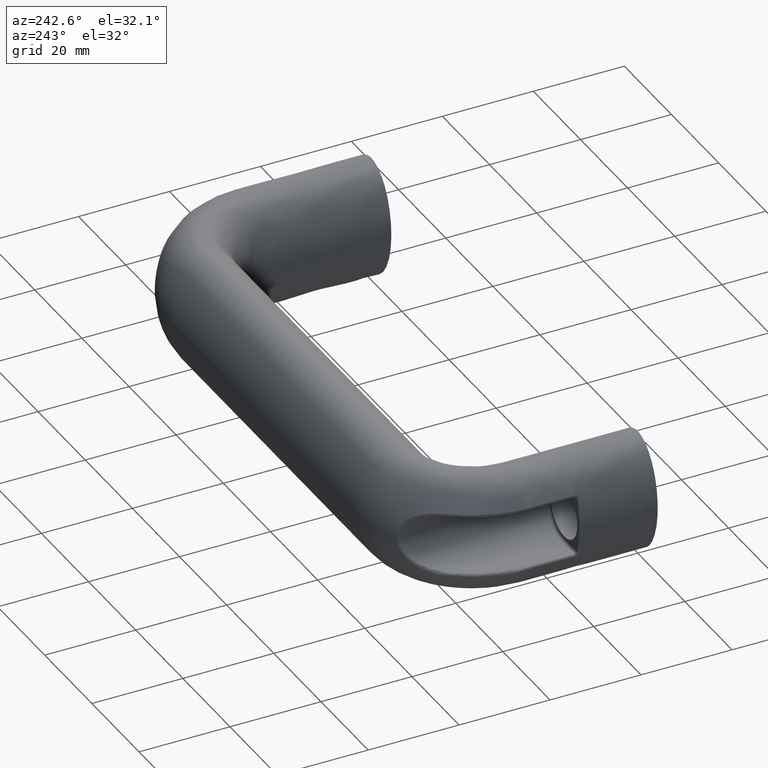
[diagram: clean part render]
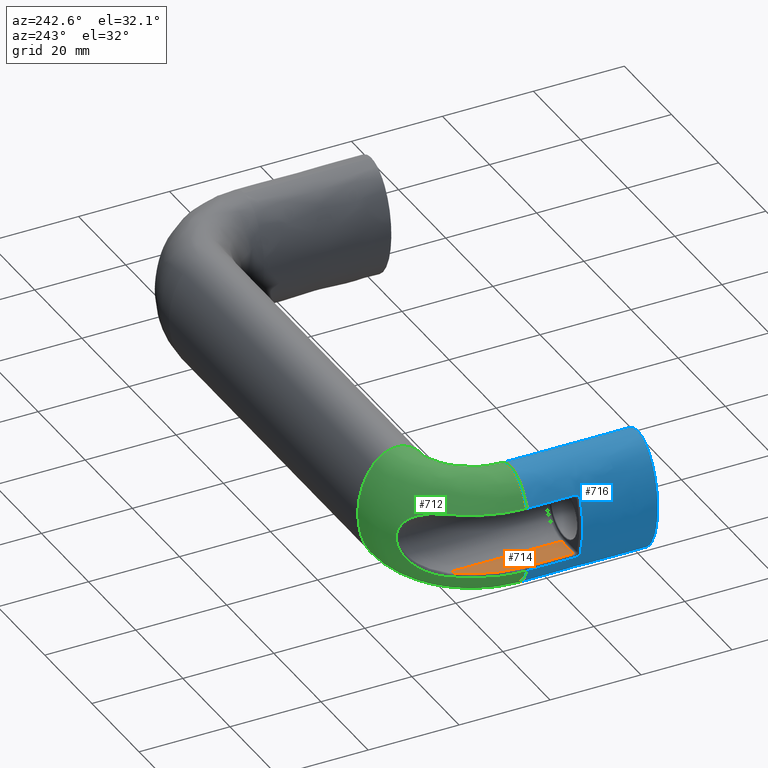
[diagram: same view with three faces highlighted in distinct colors, each labeled with its STEP entity id]
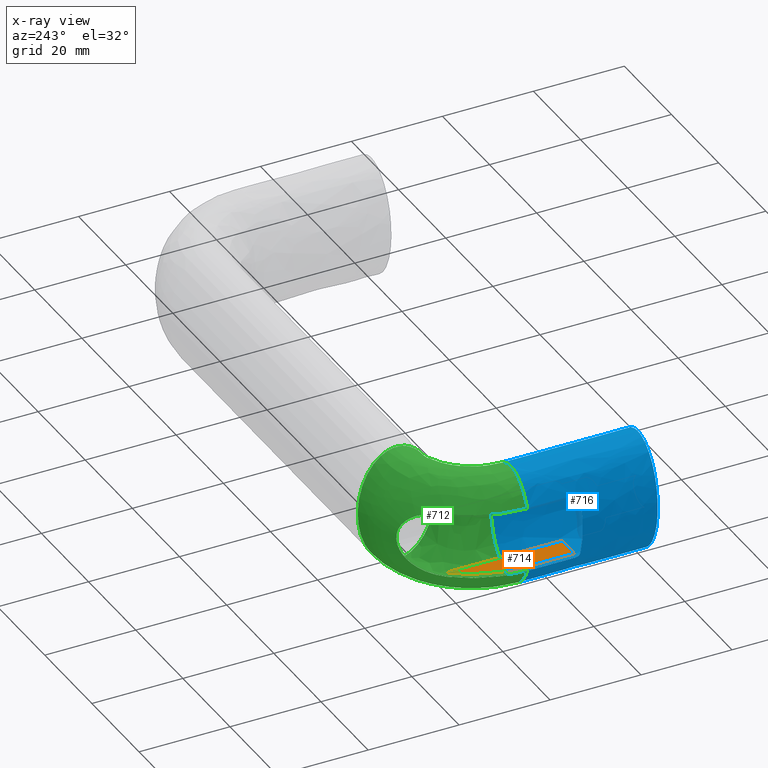
[diagram: x-ray of the same camera — body ghosted, the three highlighted faces saturated]
A machine part, auxiliary view with three faces highlighted in distinct colors.
The next image is the same camera in x-ray (body ghosted, the three faces saturated) — at least one of them is partly hidden behind the body in this view.
Their STEP definitions:

[orange] entity #714 — the highlighted planar face has unit normal (0, 0, -1).
#66=LINE('',#1594,#88);
#69=LINE('',#1778,#91);
#71=LINE('',#1845,#93);
#88=VECTOR('',#948,10.5);
#91=VECTOR('',#963,5.11900367569239);
#93=VECTOR('',#985,25.0082159809617);
#159=PLANE('',#800);
#207=FACE_OUTER_BOUND('',#271,.T.);
#271=EDGE_LOOP('',(#643,#644,#645,#646));
#294=B_SPLINE_CURVE_WITH_KNOTS('',3,(#1633,#1634,#1635,#1636,#1637),
 .UNSPECIFIED.,.F.,.F.,(4,1,4),(0.,0.672146140118673,1.56834099361024),
 .UNSPECIFIED.);
#354=VERTEX_POINT('',#1519);
#360=VERTEX_POINT('',#1590);
#362=VERTEX_POINT('',#1625);
#368=VERTEX_POINT('',#1776);
#444=EDGE_CURVE('',#354,#360,#66,.T.);
#447=EDGE_CURVE('',#360,#362,#294,.T.);
#457=EDGE_CURVE('',#368,#354,#69,.T.);
#466=EDGE_CURVE('',#362,#368,#71,.T.);
#643=ORIENTED_EDGE('',*,*,#447,.F.);
#644=ORIENTED_EDGE('',*,*,#444,.F.);
#645=ORIENTED_EDGE('',*,*,#457,.F.);
#646=ORIENTED_EDGE('',*,*,#466,.F.);
#714=ADVANCED_FACE('',(#207),#159,.F.);
#800=AXIS2_PLACEMENT_3D('',#1847,#987,#988);
#948=DIRECTION('',(-1.18952466924124E-16,1.,0.));
#963=DIRECTION('',(-1.,0.,0.));
#985=DIRECTION('',(0.,-1.,0.));
#987=DIRECTION('center_axis',(0.,0.,-1.));
#988=DIRECTION('ref_axis',(1.,0.,0.));
#1519=CARTESIAN_POINT('',(-6.61900367569238,17.5,-6.49999999999999));
#1590=CARTESIAN_POINT('',(-6.61900367569238,28.,-6.49999999999999));
#1594=CARTESIAN_POINT('',(-6.61900367569237,-7.87346815803451E-16,-6.49999999999999));
#1625=CARTESIAN_POINT('',(-1.50000000008953,42.5082159809617,-6.49999999999999));
#1633=CARTESIAN_POINT('Ctrl Pts',(-6.61900367569238,28.,-6.49999999999999));
#1634=CARTESIAN_POINT('Ctrl Pts',(-6.61900367569238,30.2404871337289,-6.49999999999999));
#1635=CARTESIAN_POINT('Ctrl Pts',(-5.85500891795625,35.4690978295492,-6.49999999999999));
#1636=CARTESIAN_POINT('Ctrl Pts',(-3.37467543715916,40.1823505602747,-6.49999999999999));
#1637=CARTESIAN_POINT('Ctrl Pts',(-1.50000000017907,42.5082159809617,-6.49999999999999));
#1776=CARTESIAN_POINT('',(-1.49999999999999,17.5,-6.49999999999999));
#1778=CARTESIAN_POINT('',(-4.55560796609514,17.5,-6.49999999999999));
#1845=CARTESIAN_POINT('',(-1.49999999999999,53.,-6.49999999999999));
#1847=CARTESIAN_POINT('Origin',(-7.36121593219027,53.,-6.49999999999999));

[blue] entity #716 — the highlighted face is a freeform B-spline surface patch.
#65=LINE('',#1593,#87);
#67=LINE('',#1773,#89);
#73=LINE('',#1868,#95);
#87=VECTOR('',#947,10.5);
#89=VECTOR('',#957,10.5);
#95=VECTOR('',#991,28.);
#209=FACE_OUTER_BOUND('',#273,.T.);
#273=EDGE_LOOP('',(#651,#652,#653,#654,#655,#656,#657,#658,#659,#660,#661));
#290=B_SPLINE_CURVE_WITH_KNOTS('',3,(#1529,#1530,#1531,#1532,#1533,#1534),
 .UNSPECIFIED.,.F.,.F.,(4,1,1,4),(-0.162803649215565,-0.116288320868261,
-0.0697729925209565,0.),.UNSPECIFIED.);
#291=B_SPLINE_CURVE_WITH_KNOTS('',3,(#1574,#1575,#1576,#1577,#1578,#1579),
 .UNSPECIFIED.,.F.,.F.,(4,1,1,4),(-0.162801566641,-0.116286833315,-0.0697720999890001,
0.),.UNSPECIFIED.);
#306=ELLIPSE('',#794,12.9999999999997,8.49999999999956);
#307=ELLIPSE('',#795,13.,8.5);
#308=ELLIPSE('',#796,13.,8.5);
#309=ELLIPSE('',#798,13.,8.5);
#310=ELLIPSE('',#802,13.,8.5);
#355=VERTEX_POINT('',#1526);
#356=VERTEX_POINT('',#1528);
#357=VERTEX_POINT('',#1572);
#358=VERTEX_POINT('',#1573);
#361=VERTEX_POINT('',#1591);
#367=VERTEX_POINT('',#1760);
#370=VERTEX_POINT('',#1838);
#371=VERTEX_POINT('',#1840);
#372=VERTEX_POINT('',#1867);
#436=EDGE_CURVE('',#355,#356,#290,.T.);
#438=EDGE_CURVE('',#357,#358,#291,.T.);
#443=EDGE_CURVE('',#361,#355,#65,.T.);
#454=EDGE_CURVE('',#358,#367,#67,.T.);
#461=EDGE_CURVE('',#356,#357,#306,.T.);
#462=EDGE_CURVE('',#367,#370,#307,.T.);
#463=EDGE_CURVE('',#370,#371,#308,.T.);
#465=EDGE_CURVE('',#371,#361,#309,.T.);
#468=EDGE_CURVE('',#370,#372,#73,.T.);
#469=EDGE_CURVE('',#372,#372,#310,.T.);
#651=ORIENTED_EDGE('',*,*,#443,.F.);
#652=ORIENTED_EDGE('',*,*,#465,.F.);
#653=ORIENTED_EDGE('',*,*,#463,.F.);
#654=ORIENTED_EDGE('',*,*,#468,.T.);
#655=ORIENTED_EDGE('',*,*,#469,.T.);
#656=ORIENTED_EDGE('',*,*,#468,.F.);
#657=ORIENTED_EDGE('',*,*,#462,.F.);
#658=ORIENTED_EDGE('',*,*,#454,.F.);
#659=ORIENTED_EDGE('',*,*,#438,.F.);
#660=ORIENTED_EDGE('',*,*,#461,.F.);
#661=ORIENTED_EDGE('',*,*,#436,.F.);
#668=(
BOUNDED_SURFACE()
B_SPLINE_SURFACE(2,1,((#1849,#1850),(#1851,#1852),(#1853,#1854),(#1855,
#1856),(#1857,#1858),(#1859,#1860),(#1861,#1862),(#1863,#1864),(#1865,#1866)),
 .UNSPECIFIED.,.T.,.F.,.F.)
B_SPLINE_SURFACE_WITH_KNOTS((3,2,2,2,3),(2,2),(-3.14159265358979,-1.5707963267949,
0.,1.5707963267949,3.14159265358979),(0.,3.36),.UNSPECIFIED.)
GEOMETRIC_REPRESENTATION_ITEM()
RATIONAL_B_SPLINE_SURFACE(((1.,1.),(0.707106781186548,0.707106781186548),
(1.,1.),(0.707106781186548,0.707106781186548),(1.,1.),(0.707106781186548,
0.707106781186548),(1.,1.),(0.707106781186548,0.707106781186548),(1.,1.)))
REPRESENTATION_ITEM('')
SURFACE()
);
#716=ADVANCED_FACE('',(#209),#668,.T.);
#794=AXIS2_PLACEMENT_3D('',#1810,#973,#974);
#795=AXIS2_PLACEMENT_3D('',#1839,#975,#976);
#796=AXIS2_PLACEMENT_3D('',#1841,#977,#978);
#798=AXIS2_PLACEMENT_3D('',#1843,#981,#982);
#802=AXIS2_PLACEMENT_3D('',#1869,#992,#993);
#947=DIRECTION('',(1.18952466924124E-16,-1.,0.));
#957=DIRECTION('',(-1.18952466924124E-16,1.,0.));
#973=DIRECTION('center_axis',(5.45588962738099E-15,1.,-1.80051755516432E-16));
#974=DIRECTION('ref_axis',(5.19262987201589E-15,1.80051755516404E-16,1.));
#975=DIRECTION('center_axis',(0.,1.,0.));
#976=DIRECTION('ref_axis',(0.,0.,-1.));
#977=DIRECTION('center_axis',(0.,1.,0.));
#978=DIRECTION('ref_axis',(0.,0.,-1.));
#981=DIRECTION('center_axis',(0.,1.,0.));
#982=DIRECTION('ref_axis',(0.,0.,-1.));
#991=DIRECTION('',(1.18952466924124E-16,-1.,0.));
#992=DIRECTION('center_axis',(0.,1.,0.));
#993=DIRECTION('ref_axis',(0.,0.,-1.));
#1526=CARTESIAN_POINT('',(-7.07752292926031,17.5,-7.19939933326745));
#1528=CARTESIAN_POINT('',(-7.48300591698149,16.5,-6.1661327417481));
#1529=CARTESIAN_POINT('Ctrl Pts',(-7.07752292922721,17.5,-7.19939933334355));
#1530=CARTESIAN_POINT('Ctrl Pts',(-7.07752292922721,17.344948905509,-7.19939933334355));
#1531=CARTESIAN_POINT('Ctrl Pts',(-7.11148146669327,17.0359268522297,-7.12201041401198));
#1532=CARTESIAN_POINT('Ctrl Pts',(-7.26092569259304,16.6224701056188,-6.76616779655952));
#1533=CARTESIAN_POINT('Ctrl Pts',(-7.40326259068004,16.4999999999122,-6.39249625163465));
#1534=CARTESIAN_POINT('Ctrl Pts',(-7.48300591698149,16.5,-6.1661327417481));
#1572=CARTESIAN_POINT('',(-7.48300591687069,16.5,6.16613274206263));
#1573=CARTESIAN_POINT('',(-7.0775229292603,17.5,7.19939933326747));
#1574=CARTESIAN_POINT('Ctrl Pts',(-7.48300591687069,16.5,6.16613274206263));
#1575=CARTESIAN_POINT('Ctrl Pts',(-7.42984437938115,16.499999999986,6.31703981823367));
#1576=CARTESIAN_POINT('Ctrl Pts',(-7.31924589596753,16.5653278864208,6.61635681753747));
#1577=CARTESIAN_POINT('Ctrl Pts',(-7.14320757920169,16.8860053352928,7.05110482725217));
#1578=CARTESIAN_POINT('Ctrl Pts',(-7.07752292922721,17.2674263333701,7.19939933334357));
#1579=CARTESIAN_POINT('Ctrl Pts',(-7.07752292922721,17.5,7.19939933334357));
#1591=CARTESIAN_POINT('',(-7.07752292926031,28.,-7.19939933326745));
#1593=CARTESIAN_POINT('',(-7.07752292926031,-8.41888812147564E-16,-7.19939933326745));
#1760=CARTESIAN_POINT('',(-7.0775229292272,28.,7.19939933334357));
#1773=CARTESIAN_POINT('',(-7.0775229292603,-8.41888812147563E-16,7.19939933326747));
#1810=CARTESIAN_POINT('Origin',(-4.45199432874688E-13,16.5,5.21804821573824E-14));
#1838=CARTESIAN_POINT('',(-2.28971929460022E-15,28.,13.));
#1839=CARTESIAN_POINT('Origin',(-3.33066907387547E-15,28.,0.));
#1840=CARTESIAN_POINT('',(-3.33066907387547E-15,28.,-13.));
#1841=CARTESIAN_POINT('Origin',(-3.33066907387547E-15,28.,0.));
#1843=CARTESIAN_POINT('Origin',(-3.33066907387547E-15,28.,0.));
#1849=CARTESIAN_POINT('Ctrl Pts',(1.20272359792346E-31,-1.01109596885505E-15,
13.));
#1850=CARTESIAN_POINT('Ctrl Pts',(-3.99680288865056E-15,33.6,13.));
#1851=CARTESIAN_POINT('Ctrl Pts',(8.5,-4.93038065763132E-31,13.));
#1852=CARTESIAN_POINT('Ctrl Pts',(8.5,33.6,13.));
#1853=CARTESIAN_POINT('Ctrl Pts',(8.5,-2.46519032881566E-31,0.));
#1854=CARTESIAN_POINT('Ctrl Pts',(8.5,33.6,0.));
#1855=CARTESIAN_POINT('Ctrl Pts',(8.5,-3.08148791101958E-31,-13.));
#1856=CARTESIAN_POINT('Ctrl Pts',(8.5,33.6,-13.));
#1857=CARTESIAN_POINT('Ctrl Pts',(1.20272359792346E-31,-1.01109596885505E-15,
-13.));
#1858=CARTESIAN_POINT('Ctrl Pts',(-3.99680288865056E-15,33.6,-13.));
#1859=CARTESIAN_POINT('Ctrl Pts',(-8.5,-2.02219193771011E-15,-13.));
#1860=CARTESIAN_POINT('Ctrl Pts',(-8.50000000000001,33.6,-13.));
#1861=CARTESIAN_POINT('Ctrl Pts',(-8.5,-2.02219193771011E-15,0.));
#1862=CARTESIAN_POINT('Ctrl Pts',(-8.50000000000001,33.6,0.));
#1863=CARTESIAN_POINT('Ctrl Pts',(-8.5,-2.02219193771011E-15,13.));
#1864=CARTESIAN_POINT('Ctrl Pts',(-8.50000000000001,33.6,13.));
#1865=CARTESIAN_POINT('Ctrl Pts',(1.20272359792346E-31,-1.01109596885505E-15,
13.));
#1866=CARTESIAN_POINT('Ctrl Pts',(-3.99680288865056E-15,33.6,13.));
#1867=CARTESIAN_POINT('',(1.04094977927525E-15,-1.01109596885505E-15,13.));
#1868=CARTESIAN_POINT('',(1.04094977927525E-15,1.23823544188913E-31,13.));
#1869=CARTESIAN_POINT('Origin',(0.,0.,0.));

[green] entity #712 — the highlighted face is a freeform B-spline surface patch.
#151=CIRCLE('',#797,16.5);
#205=FACE_OUTER_BOUND('',#269,.T.);
#269=EDGE_LOOP('',(#630,#631,#632,#633,#634,#635,#636,#637,#638));
#293=B_SPLINE_CURVE_WITH_KNOTS('',3,(#1628,#1629,#1630,#1631,#1632),
 .UNSPECIFIED.,.F.,.F.,(4,1,4),(-1.56834099361024,-0.672146140118673,0.),
 .UNSPECIFIED.);
#295=B_SPLINE_CURVE_WITH_KNOTS('',3,(#1707,#1708,#1709,#1710,#1711,#1712,
#1713,#1714,#1715,#1716,#1717),.UNSPECIFIED.,.F.,.F.,(4,1,1,1,1,1,1,1,4),
(-2.73713341995058,-2.34611435996046,-1.95509529997034,-1.56407623998023,
-1.36856670998517,-1.17305717999011,-0.782038119999991,-0.391019060009873,
-1.97555528935521E-11),.UNSPECIFIED.);
#297=B_SPLINE_CURVE_WITH_KNOTS('',3,(#1762,#1763,#1764,#1765,#1766),
 .UNSPECIFIED.,.F.,.F.,(4,1,4),(-1.56834099359296,-0.672146140111268,0.),
 .UNSPECIFIED.);
#300=ELLIPSE('',#721,13.,8.5);
#307=ELLIPSE('',#795,13.,8.5);
#308=ELLIPSE('',#796,13.,8.5);
#309=ELLIPSE('',#798,13.,8.5);
#312=VERTEX_POINT('',#1017);
#361=VERTEX_POINT('',#1591);
#363=VERTEX_POINT('',#1626);
#365=VERTEX_POINT('',#1705);
#367=VERTEX_POINT('',#1760);
#370=VERTEX_POINT('',#1838);
#371=VERTEX_POINT('',#1840);
#375=EDGE_CURVE('',#312,#312,#300,.T.);
#446=EDGE_CURVE('',#363,#361,#293,.T.);
#449=EDGE_CURVE('',#365,#363,#295,.T.);
#452=EDGE_CURVE('',#367,#365,#297,.T.);
#462=EDGE_CURVE('',#367,#370,#307,.T.);
#463=EDGE_CURVE('',#370,#371,#308,.T.);
#464=EDGE_CURVE('',#371,#312,#151,.T.);
#465=EDGE_CURVE('',#371,#361,#309,.T.);
#630=ORIENTED_EDGE('',*,*,#446,.F.);
#631=ORIENTED_EDGE('',*,*,#449,.F.);
#632=ORIENTED_EDGE('',*,*,#452,.F.);
#633=ORIENTED_EDGE('',*,*,#462,.T.);
#634=ORIENTED_EDGE('',*,*,#463,.T.);
#635=ORIENTED_EDGE('',*,*,#464,.T.);
#636=ORIENTED_EDGE('',*,*,#375,.F.);
#637=ORIENTED_EDGE('',*,*,#464,.F.);
#638=ORIENTED_EDGE('',*,*,#465,.T.);
#667=(
BOUNDED_SURFACE()
B_SPLINE_SURFACE(2,2,((#1811,#1812,#1813),(#1814,#1815,#1816),(#1817,#1818,
#1819),(#1820,#1821,#1822),(#1823,#1824,#1825),(#1826,#1827,#1828),(#1829,
#1830,#1831),(#1832,#1833,#1834),(#1835,#1836,#1837)),.UNSPECIFIED.,.T.,
 .F.,.F.)
B_SPLINE_SURFACE_WITH_KNOTS((3,2,2,2,3),(3,3),(0.,1.5707963267949,3.14159265358979,
4.71238898038469,6.28318530717959),(-4.09201708490659E-5,1.5707963267949),
 .UNSPECIFIED.)
GEOMETRIC_REPRESENTATION_ITEM()
RATIONAL_B_SPLINE_SURFACE(((1.00001526047976,0.707099151145435,1.),(0.707117571975271,
0.499994604746188,0.707106781186548),(1.00001526047976,0.707099151145435,
1.),(0.707117571975271,0.499994604746188,0.707106781186548),(1.00001526047976,
0.707099151145435,1.),(0.707117571975271,0.499994604746188,0.707106781186548),
(1.00001526047976,0.707099151145435,1.),(0.70711757197527,0.499994604746188,
0.707106781186547),(1.00001526047976,0.707099151145435,1.)))
REPRESENTATION_ITEM('')
SURFACE()
);
#712=ADVANCED_FACE('',(#205),#667,.T.);
#721=AXIS2_PLACEMENT_3D('',#1020,#808,#809);
#795=AXIS2_PLACEMENT_3D('',#1839,#975,#976);
#796=AXIS2_PLACEMENT_3D('',#1841,#977,#978);
#797=AXIS2_PLACEMENT_3D('',#1842,#979,#980);
#798=AXIS2_PLACEMENT_3D('',#1843,#981,#982);
#808=DIRECTION('center_axis',(1.,2.83276944882399E-16,0.));
#809=DIRECTION('ref_axis',(0.,0.,-1.));
#975=DIRECTION('center_axis',(0.,1.,0.));
#976=DIRECTION('ref_axis',(0.,0.,-1.));
#977=DIRECTION('center_axis',(0.,1.,0.));
#978=DIRECTION('ref_axis',(0.,0.,-1.));
#979=DIRECTION('center_axis',(0.,0.,-1.));
#980=DIRECTION('ref_axis',(-1.,1.07657990266682E-15,0.));
#981=DIRECTION('center_axis',(0.,1.,0.));
#982=DIRECTION('ref_axis',(0.,0.,-1.));
#1017=CARTESIAN_POINT('',(16.5,44.5,-13.));
#1020=CARTESIAN_POINT('Origin',(16.5,44.5,0.));
#1591=CARTESIAN_POINT('',(-7.07752292926031,28.,-7.19939933326745));
#1626=CARTESIAN_POINT('',(-1.85699404194164,42.7959574621704,-7.19939933334355));
#1628=CARTESIAN_POINT('Ctrl Pts',(-1.85699404194164,42.7959574621704,-7.19939933334355));
#1629=CARTESIAN_POINT('Ctrl Pts',(-3.7688499212125,40.423963147199,-7.19939933334355));
#1630=CARTESIAN_POINT('Ctrl Pts',(-6.29837586168848,35.6172324641306,-7.19939933334355));
#1631=CARTESIAN_POINT('Ctrl Pts',(-7.07752292922721,30.28492272025,-7.19939933334355));
#1632=CARTESIAN_POINT('Ctrl Pts',(-7.07752292922721,28.,-7.19939933334355));
#1705=CARTESIAN_POINT('',(-1.85699404194164,42.7959574621703,7.19939933334358));
#1707=CARTESIAN_POINT('Ctrl Pts',(-1.85699404194164,42.7959574621703,7.19939933334358));
#1708=CARTESIAN_POINT('Ctrl Pts',(-1.02283159853649,43.8308830519829,7.19939933336523));
#1709=CARTESIAN_POINT('Ctrl Pts',(0.721119934668758,45.8442433601718,6.89967898435128));
#1710=CARTESIAN_POINT('Ctrl Pts',(3.31779247144344,48.5243441704253,5.30731729763904));
#1711=CARTESIAN_POINT('Ctrl Pts',(4.98654572932243,50.0783417819105,2.68409924347031));
#1712=CARTESIAN_POINT('Ctrl Pts',(5.37168601309704,50.4252110290246,0.000984053387113215));
#1713=CARTESIAN_POINT('Ctrl Pts',(4.98818413011194,50.0793279409452,-2.67691021381866));
#1714=CARTESIAN_POINT('Ctrl Pts',(3.31619786598716,48.5234564110411,-5.31494059599437));
#1715=CARTESIAN_POINT('Ctrl Pts',(0.720815362382572,45.8438620367268,-6.89869311863837));
#1716=CARTESIAN_POINT('Ctrl Pts',(-1.02283159852037,43.8308830520019,-7.19939933336332));
#1717=CARTESIAN_POINT('Ctrl Pts',(-1.85699404192577,42.79595746219,-7.19939933334355));
#1760=CARTESIAN_POINT('',(-7.0775229292272,28.,7.19939933334357));
#1762=CARTESIAN_POINT('Ctrl Pts',(-7.0775229292272,28.,7.19939933334357));
#1763=CARTESIAN_POINT('Ctrl Pts',(-7.0775229292272,31.0465636269664,7.19939933334357));
#1764=CARTESIAN_POINT('Ctrl Pts',(-6.03052192856724,36.3763807201728,7.19939933334357));
#1765=CARTESIAN_POINT('Ctrl Pts',(-3.29088595147628,41.0169617258135,7.19939933334357));
#1766=CARTESIAN_POINT('Ctrl Pts',(-1.85699404205222,42.7959574620332,7.19939933334357));
#1811=CARTESIAN_POINT('Ctrl Pts',(1.11972730040944E-8,27.99939212653,-13.));
#1812=CARTESIAN_POINT('Ctrl Pts',(-0.000607884667718539,44.5,-13.));
#1813=CARTESIAN_POINT('Ctrl Pts',(16.5,44.5,-13.));
#1814=CARTESIAN_POINT('Ctrl Pts',(-8.49999998303444,27.9990789795909,-13.));
#1815=CARTESIAN_POINT('Ctrl Pts',(-8.50092103737533,53.,-13.));
#1816=CARTESIAN_POINT('Ctrl Pts',(16.5,53.,-13.));
#1817=CARTESIAN_POINT('Ctrl Pts',(-8.49999998303444,27.9990789795909,-7.9602041944578E-16));
#1818=CARTESIAN_POINT('Ctrl Pts',(-8.50092103737533,53.,-7.9602041944578E-16));
#1819=CARTESIAN_POINT('Ctrl Pts',(16.5,53.,-7.9602041944578E-16));
#1820=CARTESIAN_POINT('Ctrl Pts',(-8.49999998303444,27.9990789795909,13.));
#1821=CARTESIAN_POINT('Ctrl Pts',(-8.50092103737533,53.,13.));
#1822=CARTESIAN_POINT('Ctrl Pts',(16.5,53.,13.));
#1823=CARTESIAN_POINT('Ctrl Pts',(1.11972730040944E-8,27.99939212653,13.));
#1824=CARTESIAN_POINT('Ctrl Pts',(-0.000607884667718539,44.5,13.));
#1825=CARTESIAN_POINT('Ctrl Pts',(16.5,44.5,13.));
#1826=CARTESIAN_POINT('Ctrl Pts',(8.50000000542898,27.9997052734691,13.));
#1827=CARTESIAN_POINT('Ctrl Pts',(8.4997052680399,36.,13.));
#1828=CARTESIAN_POINT('Ctrl Pts',(16.5,36.,13.));
#1829=CARTESIAN_POINT('Ctrl Pts',(8.50000000542899,27.9997052734691,2.38806125833734E-15));
#1830=CARTESIAN_POINT('Ctrl Pts',(8.4997052680399,36.,2.38806125833734E-15));
#1831=CARTESIAN_POINT('Ctrl Pts',(16.5,36.,2.38806125833734E-15));
#1832=CARTESIAN_POINT('Ctrl Pts',(8.50000000542898,27.9997052734691,-13.));
#1833=CARTESIAN_POINT('Ctrl Pts',(8.4997052680399,36.,-13.));
#1834=CARTESIAN_POINT('Ctrl Pts',(16.5,36.,-13.));
#1835=CARTESIAN_POINT('Ctrl Pts',(1.11972752245404E-8,27.99939212653,-13.));
#1836=CARTESIAN_POINT('Ctrl Pts',(-0.000607884667716318,44.5,-13.));
#1837=CARTESIAN_POINT('Ctrl Pts',(16.5,44.5,-13.));
#1838=CARTESIAN_POINT('',(-2.28971929460022E-15,28.,13.));
#1839=CARTESIAN_POINT('Origin',(-3.33066907387547E-15,28.,0.));
#1840=CARTESIAN_POINT('',(-3.33066907387547E-15,28.,-13.));
#1841=CARTESIAN_POINT('Origin',(-3.33066907387547E-15,28.,0.));
#1842=CARTESIAN_POINT('Origin',(16.5,28.,-13.));
#1843=CARTESIAN_POINT('Origin',(-3.33066907387547E-15,28.,0.));